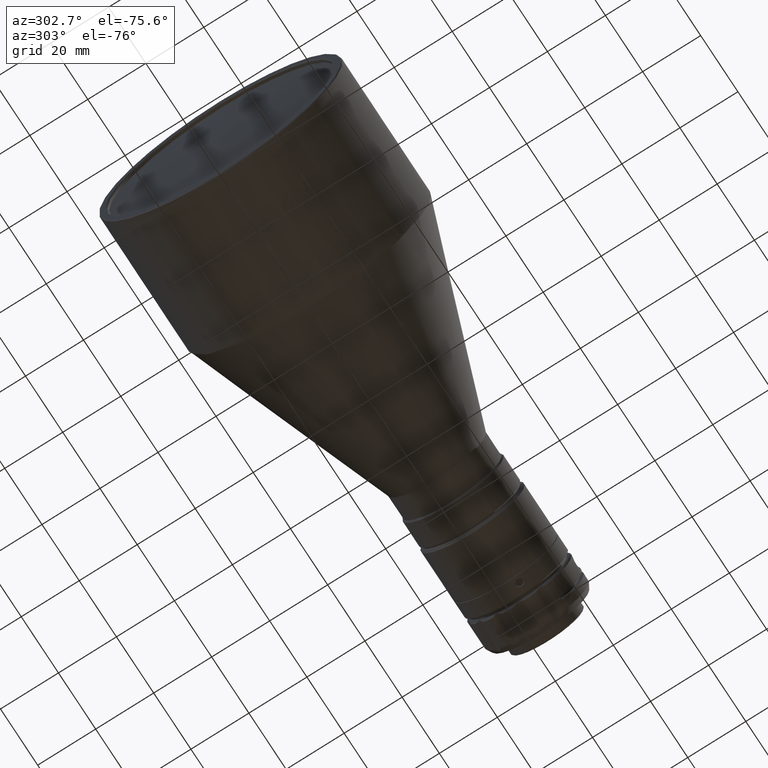
[diagram: clean part render]
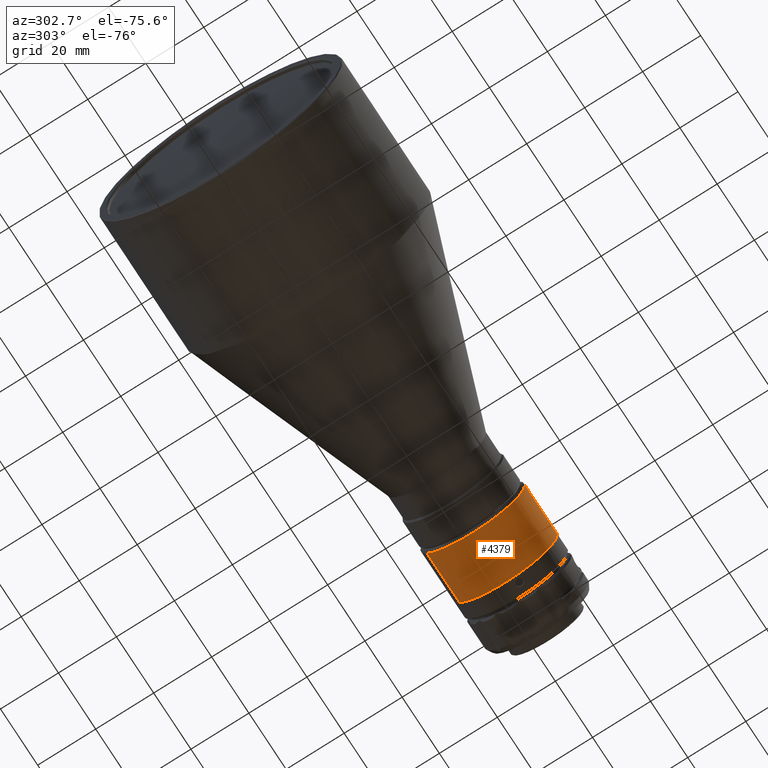
[diagram: same view with one face highlighted and labeled with its STEP entity id]
A machine part, auxiliary view. The second image highlights one B-rep face of the part: STEP entity #4379.
In plain terms, the highlighted cylindrical surface (partial cylindrical patch) has radius 18 mm, axis along (-1, 0, -0).
Its self-contained STEP definition (entity closure, byte-faithful):
#62 = CARTESIAN_POINT ( 'NONE',  ( 153.1200000000000000, 15.70422075626478900, -8.796445329705752800 ) ) ;
#75 = CARTESIAN_POINT ( 'NONE',  ( 153.1200000000000000, 0.0000000000000000000, 0.0000000000000000000 ) ) ;
#182 = ORIENTED_EDGE ( 'NONE', *, *, #816, .T. ) ;
#462 = ORIENTED_EDGE ( 'NONE', *, *, #2783, .F. ) ;
#640 = DIRECTION ( 'NONE',  ( -1.000000000000000000, 8.408172968461348300E-017, -4.709691425489848900E-017 ) ) ;
#720 = VERTEX_POINT ( 'NONE', #4384 ) ;
#816 = EDGE_CURVE ( 'NONE', #720, #1935, #1629, .T. ) ;
#835 = VERTEX_POINT ( 'NONE', #62 ) ;
#1126 = DIRECTION ( 'NONE',  ( 0.0000000000000000000, 0.8724567086813771500, -0.4886914072058751700 ) ) ;
#1149 = AXIS2_PLACEMENT_3D ( 'NONE', #75, #1435, #1126 ) ;
#1169 = CYLINDRICAL_SURFACE ( 'NONE', #1149, 18.00000000000000000 ) ;
#1242 = LINE ( 'NONE', #2034, #3862 ) ;
#1267 = DIRECTION ( 'NONE',  ( -1.000000000000000000, -0.0000000000000000000, 0.0000000000000000000 ) ) ;
#1336 = CARTESIAN_POINT ( 'NONE',  ( 153.1200000000000000, -15.70422075626479200, 8.796445329705751000 ) ) ;
#1435 = DIRECTION ( 'NONE',  ( -1.000000000000000000, 8.408172968461348300E-017, -4.709691425489848900E-017 ) ) ;
#1629 = LINE ( 'NONE', #1336, #3264 ) ;
#1699 = ORIENTED_EDGE ( 'NONE', *, *, #2017, .F. ) ;
#1914 = AXIS2_PLACEMENT_3D ( 'NONE', #3305, #1267, #3642 ) ;
#1935 = VERTEX_POINT ( 'NONE', #4236 ) ;
#2017 = EDGE_CURVE ( 'NONE', #835, #3830, #1242, .T. ) ;
#2034 = CARTESIAN_POINT ( 'NONE',  ( 153.1200000000000000, 15.70422075626478900, -8.796445329705752800 ) ) ;
#2230 = CIRCLE ( 'NONE', #2982, 18.00000000000000000 ) ;
#2328 = EDGE_CURVE ( 'NONE', #835, #720, #2230, .T. ) ;
#2510 = ORIENTED_EDGE ( 'NONE', *, *, #2328, .T. ) ;
#2775 = EDGE_LOOP ( 'NONE', ( #2510, #182, #462, #1699 ) ) ;
#2783 = EDGE_CURVE ( 'NONE', #3830, #1935, #3470, .T. ) ;
#2982 = AXIS2_PLACEMENT_3D ( 'NONE', #4350, #4387, #4031 ) ;
#3264 = VECTOR ( 'NONE', #640, 1000.000000000000000 ) ;
#3305 = CARTESIAN_POINT ( 'NONE',  ( 135.5000000000000000, 0.0000000000000000000, 0.0000000000000000000 ) ) ;
#3470 = CIRCLE ( 'NONE', #1914, 18.00000000000000000 ) ;
#3642 = DIRECTION ( 'NONE',  ( 0.0000000000000000000, -0.4886914072058751700, -0.8724567086813771500 ) ) ;
#3720 = CARTESIAN_POINT ( 'NONE',  ( 135.5000000000000000, 15.70422075626478500, -8.796445329705754500 ) ) ;
#3751 = DIRECTION ( 'NONE',  ( -1.000000000000000000, 8.408172968461348300E-017, -4.709691425489848900E-017 ) ) ;
#3830 = VERTEX_POINT ( 'NONE', #3720 ) ;
#3862 = VECTOR ( 'NONE', #3751, 1000.000000000000000 ) ;
#4031 = DIRECTION ( 'NONE',  ( 0.0000000000000000000, 0.8724567086813771500, -0.4886914072058751700 ) ) ;
#4236 = CARTESIAN_POINT ( 'NONE',  ( 135.5000000000000000, -15.70422075626478900, 8.796445329705752800 ) ) ;
#4324 = FACE_OUTER_BOUND ( 'NONE', #2775, .T. ) ;
#4350 = CARTESIAN_POINT ( 'NONE',  ( 153.1200000000000000, 5.983217752432963400E-041, -3.351395059446404300E-041 ) ) ;
#4379 = ADVANCED_FACE ( 'NONE', ( #4324 ), #1169, .T. ) ;
#4384 = CARTESIAN_POINT ( 'NONE',  ( 153.1200000000000000, -15.70422075626479200, 8.796445329705751000 ) ) ;
#4387 = DIRECTION ( 'NONE',  ( -1.000000000000000000, 8.408172968461348300E-017, -4.709691425489848900E-017 ) ) ;